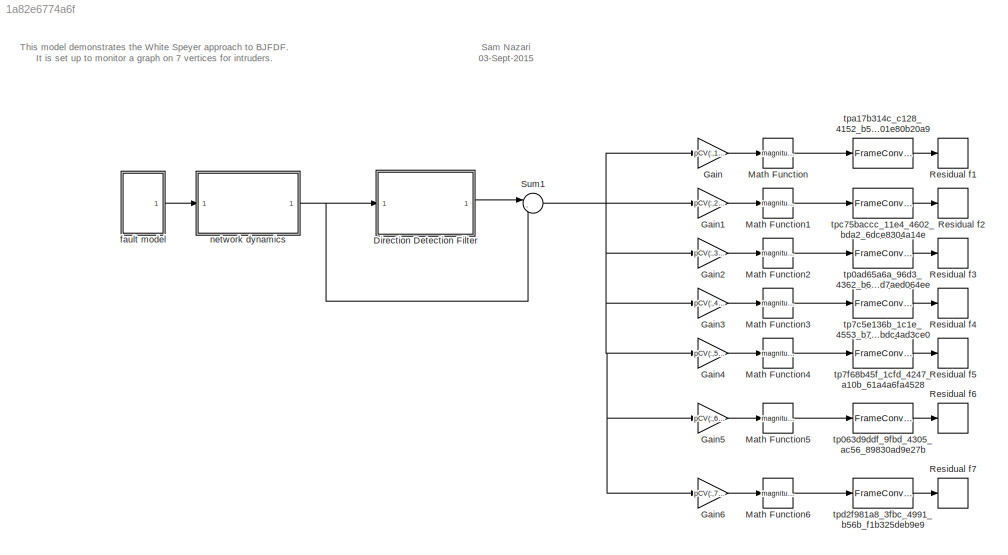
MODEL slx_1a82e6774a6f
KIND model
CONFIG AbsTol = auto
CONFIG FixedStep = auto
CONFIG MaxStep = auto
CONFIG MinStep = auto
CONFIG RelTol = 1e-3
CONFIG SampleTimeConstraint = Unconstrained
CONFIG Solver = ode45
CONFIG SolverMode = Auto
CONFIG SolverName = ode45
CONFIG StartTime = 0.0
CONFIG StopTime = 10.0
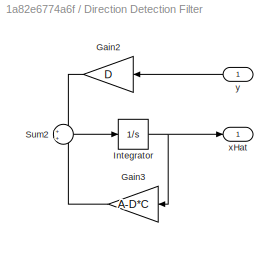
BLOCK [SubSystem] Direction Detection Filter
  Ports = [1, 1]
  RequestExecContextInheritance = off
  Variant = off
BLOCK [Gain] Direction Detection Filter/Gain2
  Gain = D
  Multiplication = Matrix(K*u)
  OutDataTypeStr = Inherit: Inherit via internal rule
  ParamDataTypeStr = Inherit: Inherit via internal rule
  SaturateOnIntegerOverflow = off
BLOCK [Gain] Direction Detection Filter/Gain3
  Gain = A-D*C
  Multiplication = Matrix(K*u)
  OutDataTypeStr = Inherit: Inherit via internal rule
  ParamDataTypeStr = Inherit: Inherit via internal rule
  SaturateOnIntegerOverflow = off
BLOCK [Integrator] Direction Detection Filter/Integrator
  Ports = [1, 1]
BLOCK [Sum] Direction Detection Filter/Sum2
  IconShape = round
  InputSameDT = off
  OutDataTypeStr = Inherit: Inherit via internal rule
  Ports = [2, 1]
  SaturateOnIntegerOverflow = off
BLOCK [Outport] Direction Detection Filter/xHat 
  IconDisplay = Port number
BLOCK [Inport] Direction Detection Filter/y
  IconDisplay = Port number
BLOCK [Gain] Gain
  Gain = pCV(:,1)'
  OutDataTypeStr = Inherit: Inherit via internal rule
  ParamDataTypeStr = Inherit: Inherit via internal rule
  SaturateOnIntegerOverflow = off
BLOCK [Gain] Gain1
  Gain = pCV(:,2)'
  OutDataTypeStr = Inherit: Inherit via internal rule
  ParamDataTypeStr = Inherit: Inherit via internal rule
  SaturateOnIntegerOverflow = off
BLOCK [Gain] Gain2
  Gain = pCV(:,3)'
  OutDataTypeStr = Inherit: Inherit via internal rule
  ParamDataTypeStr = Inherit: Inherit via internal rule
  SaturateOnIntegerOverflow = off
BLOCK [Gain] Gain3
  Gain = pCV(:,4)'
  OutDataTypeStr = Inherit: Inherit via internal rule
  ParamDataTypeStr = Inherit: Inherit via internal rule
  SaturateOnIntegerOverflow = off
BLOCK [Gain] Gain4
  Gain = pCV(:,5)'
  OutDataTypeStr = Inherit: Inherit via internal rule
  ParamDataTypeStr = Inherit: Inherit via internal rule
  SaturateOnIntegerOverflow = off
BLOCK [Gain] Gain5
  Gain = pCV(:,6)'
  OutDataTypeStr = Inherit: Inherit via internal rule
  ParamDataTypeStr = Inherit: Inherit via internal rule
  SaturateOnIntegerOverflow = off
BLOCK [Gain] Gain6
  Gain = pCV(:,7)'
  OutDataTypeStr = Inherit: Inherit via internal rule
  ParamDataTypeStr = Inherit: Inherit via internal rule
  SaturateOnIntegerOverflow = off
BLOCK [Math] Math Function
  Operator = magnitude^2
  Ports = [1, 1]
BLOCK [Math] Math Function1
  Operator = magnitude^2
  Ports = [1, 1]
BLOCK [Math] Math Function2
  Operator = magnitude^2
  Ports = [1, 1]
BLOCK [Math] Math Function3
  Operator = magnitude^2
  Ports = [1, 1]
BLOCK [Math] Math Function4
  Operator = magnitude^2
  Ports = [1, 1]
BLOCK [Math] Math Function5
  Operator = magnitude^2
  Ports = [1, 1]
BLOCK [Math] Math Function6
  Operator = magnitude^2
  Ports = [1, 1]
BLOCK [ToWorkspace] Residual f1
  FixptAsFi = on
  MaxDataPoints = inf
  Ports = [1]
  SampleTime = -1
  VariableName = resf1
BLOCK [ToWorkspace] Residual f2
  FixptAsFi = on
  MaxDataPoints = inf
  Ports = [1]
  SampleTime = -1
  VariableName = resf2
BLOCK [ToWorkspace] Residual f3
  FixptAsFi = on
  MaxDataPoints = inf
  Ports = [1]
  SampleTime = -1
  VariableName = resf3
BLOCK [ToWorkspace] Residual f4
  FixptAsFi = on
  MaxDataPoints = inf
  Ports = [1]
  SampleTime = -1
  VariableName = resf4
BLOCK [ToWorkspace] Residual f5
  FixptAsFi = on
  MaxDataPoints = inf
  Ports = [1]
  SampleTime = -1
  VariableName = resf5
BLOCK [ToWorkspace] Residual f6
  FixptAsFi = on
  MaxDataPoints = inf
  Ports = [1]
  SampleTime = -1
  VariableName = resf6
BLOCK [ToWorkspace] Residual f7
  FixptAsFi = on
  MaxDataPoints = inf
  Ports = [1]
  SampleTime = -1
  VariableName = resf7
BLOCK [Sum] Sum1
  IconShape = round
  InputSameDT = off
  Inputs = |-+
  OutDataTypeStr = Inherit: Inherit via internal rule
  Ports = [2, 1]
  SaturateOnIntegerOverflow = off
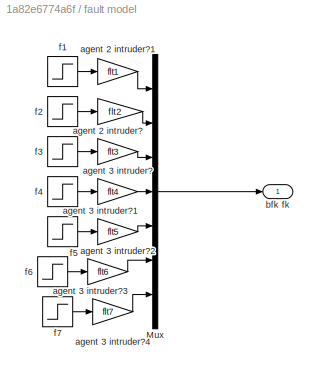
BLOCK [SubSystem] fault model
  Ports = [0, 1]
  RequestExecContextInheritance = off
  Variant = off
BLOCK [Mux] fault model/Mux
  DisplayOption = bar
  Inputs = 7
  Ports = [7, 1]
BLOCK [Gain] fault model/agent 2 intruder?
  Gain = flt2
  Multiplication = Matrix(K*u)
  OutDataTypeStr = Inherit: Inherit via internal rule
  ParamDataTypeStr = Inherit: Inherit via internal rule
  SaturateOnIntegerOverflow = off
BLOCK [Gain] fault model/agent 2 intruder?1
  Gain = flt1
  Multiplication = Matrix(K*u)
  OutDataTypeStr = Inherit: Inherit via internal rule
  ParamDataTypeStr = Inherit: Inherit via internal rule
  SaturateOnIntegerOverflow = off
BLOCK [Gain] fault model/agent 3 intruder?
  Gain = flt3
  OutDataTypeStr = Inherit: Inherit via internal rule
  ParamDataTypeStr = Inherit: Inherit via internal rule
  SaturateOnIntegerOverflow = off
BLOCK [Gain] fault model/agent 3 intruder?1
  Gain = flt4
  OutDataTypeStr = Inherit: Inherit via internal rule
  ParamDataTypeStr = Inherit: Inherit via internal rule
  SaturateOnIntegerOverflow = off
BLOCK [Gain] fault model/agent 3 intruder?2
  Gain = flt5
  OutDataTypeStr = Inherit: Inherit via internal rule
  ParamDataTypeStr = Inherit: Inherit via internal rule
  SaturateOnIntegerOverflow = off
BLOCK [Gain] fault model/agent 3 intruder?3
  Gain = flt6
  OutDataTypeStr = Inherit: Inherit via internal rule
  ParamDataTypeStr = Inherit: Inherit via internal rule
  SaturateOnIntegerOverflow = off
BLOCK [Gain] fault model/agent 3 intruder?4
  Gain = flt7
  OutDataTypeStr = Inherit: Inherit via internal rule
  ParamDataTypeStr = Inherit: Inherit via internal rule
  SaturateOnIntegerOverflow = off
BLOCK [Outport] fault model/bfk fk
  IconDisplay = Port number
BLOCK [Step] fault model/f1
  After = f1Val
  SampleTime = tf1
BLOCK [Step] fault model/f2
  After = f2Val
  SampleTime = tf2
BLOCK [Step] fault model/f3
  After = f3Val
  SampleTime = tf3
BLOCK [Step] fault model/f4
  After = f4Val
  SampleTime = tf4
BLOCK [Step] fault model/f5
  After = f5Val
  SampleTime = tf5
BLOCK [Step] fault model/f6
  After = f6Val
  SampleTime = tf6
BLOCK [Step] fault model/f7
  After = f7Val
  SampleTime = tf7
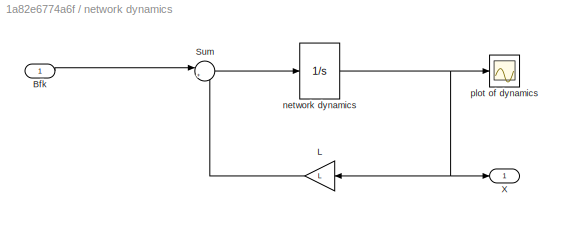
BLOCK [SubSystem] network dynamics
  Ports = [1, 1]
  RequestExecContextInheritance = off
  Variant = off
BLOCK [Inport] network dynamics/Bfk
  IconDisplay = Port number
BLOCK [Gain] network dynamics/L
  Gain = L
  Multiplication = Matrix(K*u)
  OutDataTypeStr = Inherit: Inherit via internal rule
  ParamDataTypeStr = Inherit: Inherit via internal rule
  SaturateOnIntegerOverflow = off
BLOCK [Sum] network dynamics/Sum
  IconShape = round
  InputSameDT = off
  Inputs = |+-
  OutDataTypeStr = Inherit: Inherit via internal rule
  Ports = [2, 1]
  SaturateOnIntegerOverflow = off
BLOCK [Outport] network dynamics/X
  IconDisplay = Port number
BLOCK [Integrator] network dynamics/network dynamics
  InitialCondition = x0
  Ports = [1, 1]
BLOCK [Scope] network dynamics/plot of dynamics
  Ports = [1]
  ScopeSpecificationString = C++SS(StrPVP('Location','[5, 43, 1605, 1194]'),StrPVP('Open','off'),StrPVP('ZoomMode','yonly'),MxPVP('AxesTitles',24,'struct(''axes1'',''%<SignalLabel>'')'),MxPVP('ScopeGraphics',28,'struct(''FigureColor'',''[0.5 0.5 0.5]'',''AxesColor'',''[0 0 0]'',''AxesTickColor'',''[1 1 1]'',''LineColors'',''[1 1 0;1 0 1;0 1 1;1 0 0;0 1 0;0 0 1]'',''LineStyles'',''-|-|-|-|-|-'',''LineWidths'',''[0.5 0.5 0.5 0....<+266ch>
BLOCK [FrameConversion] tp063d9ddf_9fbd_4305_ac56_89830ad9e27b
  InheritSamplingMode = off
  OutFrame = Sample-based
  Ports = [1, 1]
BLOCK [FrameConversion] tp0ad65a6a_96d3_4362_b60f_75d7aed064ee
  InheritSamplingMode = off
  OutFrame = Sample-based
  Ports = [1, 1]
BLOCK [FrameConversion] tp7c5e136b_1c1e_4553_b73e_2dbdc4ad3ce0
  InheritSamplingMode = off
  OutFrame = Sample-based
  Ports = [1, 1]
BLOCK [FrameConversion] tp7f68b45f_1cfd_4247_a10b_61a4a6fa4528
  InheritSamplingMode = off
  OutFrame = Sample-based
  Ports = [1, 1]
BLOCK [FrameConversion] tpa17b314c_c128_4152_b5af_ab01e80b20a9
  InheritSamplingMode = off
  OutFrame = Sample-based
  Ports = [1, 1]
BLOCK [FrameConversion] tpc75baccc_11e4_4602_bda2_6dce8304a14e
  InheritSamplingMode = off
  OutFrame = Sample-based
  Ports = [1, 1]
BLOCK [FrameConversion] tpd2f981a8_3fbc_4991_b56b_f1b325deb9e9
  InheritSamplingMode = off
  OutFrame = Sample-based
  Ports = [1, 1]
ANNOTATION (root): Sam Nazari 03-Sept-2015
ANNOTATION (root): This model demonstrates the White Speyer approach to BJFDF. It is set up to monitor a graph on 7 vertices for intruders.
LINE Direction Detection Filter/Gain2:1 -> Direction Detection Filter/Sum2:1
LINE Direction Detection Filter/Gain3:1 -> Direction Detection Filter/Sum2:2
NET Direction Detection Filter/Integrator:1 -> Direction Detection Filter/Gain3:1, Direction Detection Filter/xHat :1
LINE Direction Detection Filter/Sum2:1 -> Direction Detection Filter/Integrator:1
LINE Direction Detection Filter/y:1 -> Direction Detection Filter/Gain2:1
LINE Direction Detection Filter:1 -> Sum1:1
LINE Gain1:1 -> Math Function1:1
LINE Gain2:1 -> Math Function2:1
LINE Gain3:1 -> Math Function3:1
LINE Gain4:1 -> Math Function4:1
LINE Gain5:1 -> Math Function5:1
LINE Gain6:1 -> Math Function6:1
LINE Gain:1 -> Math Function:1
LINE Math Function1:1 -> tpc75baccc_11e4_4602_bda2_6dce8304a14e:1
LINE Math Function2:1 -> tp0ad65a6a_96d3_4362_b60f_75d7aed064ee:1
LINE Math Function3:1 -> tp7c5e136b_1c1e_4553_b73e_2dbdc4ad3ce0:1
LINE Math Function4:1 -> tp7f68b45f_1cfd_4247_a10b_61a4a6fa4528:1
LINE Math Function5:1 -> tp063d9ddf_9fbd_4305_ac56_89830ad9e27b:1
LINE Math Function6:1 -> tpd2f981a8_3fbc_4991_b56b_f1b325deb9e9:1
LINE Math Function:1 -> tpa17b314c_c128_4152_b5af_ab01e80b20a9:1
NET Sum1:1 -> Gain1:1, Gain2:1, Gain3:1, Gain4:1, Gain5:1, Gain6:1, Gain:1
LINE fault model/Mux:1 -> fault model/bfk fk:1
LINE fault model/agent 2 intruder?1:1 -> fault model/Mux:1
LINE fault model/agent 2 intruder?:1 -> fault model/Mux:2
LINE fault model/agent 3 intruder?1:1 -> fault model/Mux:4
LINE fault model/agent 3 intruder?2:1 -> fault model/Mux:5
LINE fault model/agent 3 intruder?3:1 -> fault model/Mux:6
LINE fault model/agent 3 intruder?4:1 -> fault model/Mux:7
LINE fault model/agent 3 intruder?:1 -> fault model/Mux:3
LINE fault model/f1:1 -> fault model/agent 2 intruder?1:1
LINE fault model/f2:1 -> fault model/agent 2 intruder?:1
LINE fault model/f3:1 -> fault model/agent 3 intruder?:1
LINE fault model/f4:1 -> fault model/agent 3 intruder?1:1
LINE fault model/f5:1 -> fault model/agent 3 intruder?2:1
LINE fault model/f6:1 -> fault model/agent 3 intruder?3:1
LINE fault model/f7:1 -> fault model/agent 3 intruder?4:1
LINE fault model:1 -> network dynamics:1
LINE network dynamics/Bfk:1 -> network dynamics/Sum:1
LINE network dynamics/L:1 -> network dynamics/Sum:2
LINE network dynamics/Sum:1 -> network dynamics/network dynamics:1
NET network dynamics/network dynamics:1 -> network dynamics/L:1, network dynamics/X:1, network dynamics/plot of dynamics:1
NET network dynamics:1 -> Direction Detection Filter:1, Sum1:2
LINE tp063d9ddf_9fbd_4305_ac56_89830ad9e27b:1 -> Residual f6:1
LINE tp0ad65a6a_96d3_4362_b60f_75d7aed064ee:1 -> Residual f3:1
LINE tp7c5e136b_1c1e_4553_b73e_2dbdc4ad3ce0:1 -> Residual f4:1
LINE tp7f68b45f_1cfd_4247_a10b_61a4a6fa4528:1 -> Residual f5:1
LINE tpa17b314c_c128_4152_b5af_ab01e80b20a9:1 -> Residual f1:1
LINE tpc75baccc_11e4_4602_bda2_6dce8304a14e:1 -> Residual f2:1
LINE tpd2f981a8_3fbc_4991_b56b_f1b325deb9e9:1 -> Residual f7:1
note: NET lines group one-source signal fan-out (src -> all destinations, sorted); 1:1 wires keep LINE
